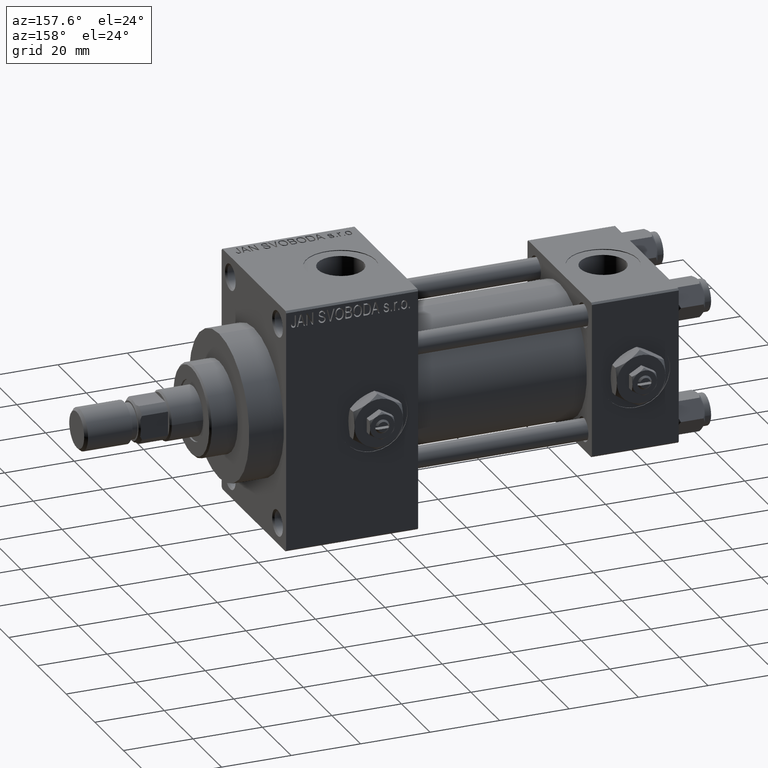
[diagram: clean part render]
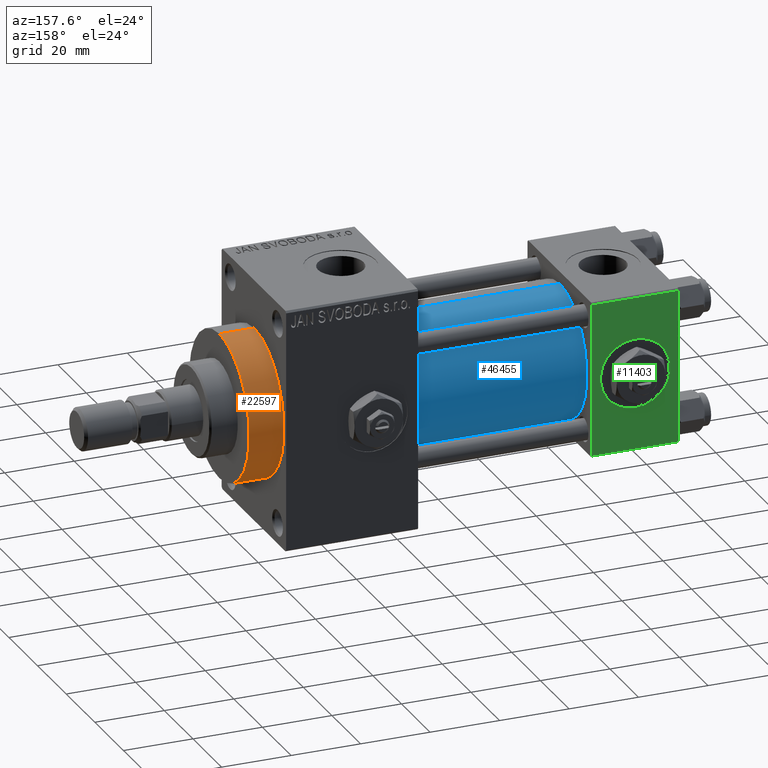
[diagram: same view with three faces highlighted in distinct colors, each labeled with its STEP entity id]
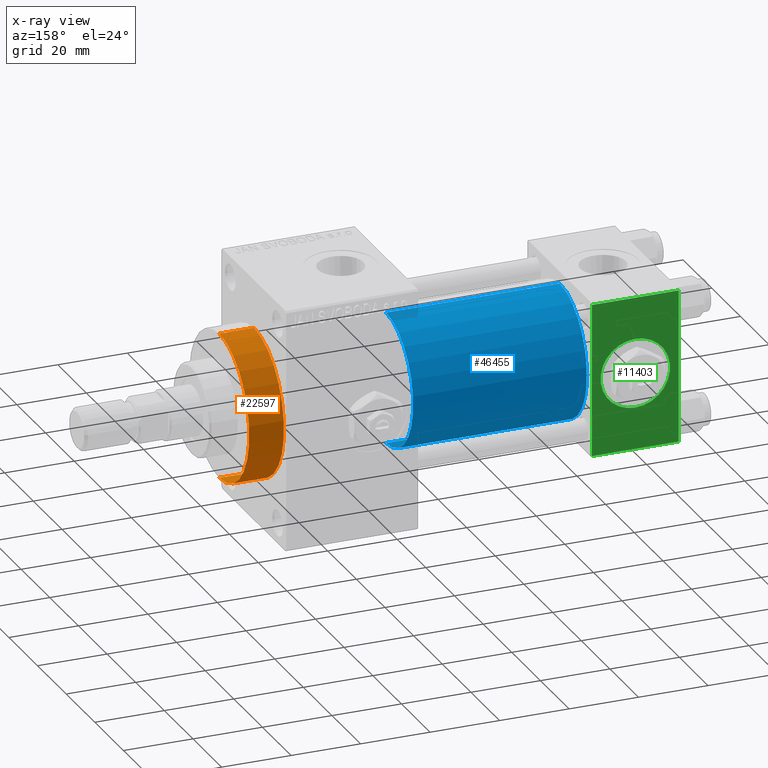
[diagram: x-ray of the same camera — body ghosted, the three highlighted faces saturated]
A machine part, auxiliary view with three faces highlighted in distinct colors.
The next image is the same camera in x-ray (body ghosted, the three faces saturated) — at least one of them is partly hidden behind the body in this view.
Their STEP definitions:

[orange] entity #22597 — the highlighted cylindrical surface (partial cylindrical patch) has radius 21 mm, axis along (-1, -0, -0).
#2892 = DIRECTION ( 'NONE',  ( 0.000000000000000000, 0.000000000000000000, -1.000000000000000000 ) ) ;
#4232 = CARTESIAN_POINT ( 'NONE',  ( 113.0000000000000142, 0.000000000000000000, 21.00000000000000000 ) ) ;
#5423 = AXIS2_PLACEMENT_3D ( 'NONE', #15633, #27124, #28609 ) ;
#5555 = EDGE_CURVE ( 'NONE', #37567, #17385, #31849, .T. ) ;
#5666 = CARTESIAN_POINT ( 'NONE',  ( 113.0000000000000142, 0.000000000000000000, 0.000000000000000000 ) ) ;
#8126 = DIRECTION ( 'NONE',  ( 0.000000000000000000, 0.000000000000000000, 1.000000000000000000 ) ) ;
#9403 = CARTESIAN_POINT ( 'NONE',  ( 113.0000000000000142, 2.571758278209441661E-15, -21.00000000000000000 ) ) ;
#10092 = LINE ( 'NONE', #18857, #35168 ) ;
#13868 = DIRECTION ( 'NONE',  ( -1.000000000000000000, -0.000000000000000000, -0.000000000000000000 ) ) ;
#14356 = CARTESIAN_POINT ( 'NONE',  ( 123.0000000000000142, 0.000000000000000000, 21.00000000000000000 ) ) ;
#15633 = CARTESIAN_POINT ( 'NONE',  ( 123.0000000000000142, 0.000000000000000000, 0.000000000000000000 ) ) ;
#15890 = ORIENTED_EDGE ( 'NONE', *, *, #5555, .F. ) ;
#16132 = CARTESIAN_POINT ( 'NONE',  ( 123.0000000000000142, 2.571758278209441661E-15, -21.00000000000000000 ) ) ;
#17385 = VERTEX_POINT ( 'NONE', #4232 ) ;
#18857 = CARTESIAN_POINT ( 'NONE',  ( 123.0000000000000142, 2.571758278209441661E-15, -21.00000000000000000 ) ) ;
#19082 = VECTOR ( 'NONE', #19856, 1000.000000000000000 ) ;
#19374 = CARTESIAN_POINT ( 'NONE',  ( 123.0000000000000142, 0.000000000000000000, 21.00000000000000000 ) ) ;
#19856 = DIRECTION ( 'NONE',  ( -1.000000000000000000, -0.000000000000000000, -0.000000000000000000 ) ) ;
#20390 = DIRECTION ( 'NONE',  ( -1.000000000000000000, -0.000000000000000000, -0.000000000000000000 ) ) ;
#22597 = ADVANCED_FACE ( 'NONE', ( #42456 ), #39414, .T. ) ;
#23479 = ORIENTED_EDGE ( 'NONE', *, *, #37577, .T. ) ;
#25171 = AXIS2_PLACEMENT_3D ( 'NONE', #35166, #20390, #8126 ) ;
#26530 = AXIS2_PLACEMENT_3D ( 'NONE', #5666, #37226, #2892 ) ;
#27124 = DIRECTION ( 'NONE',  ( 1.000000000000000000, 0.000000000000000000, 0.000000000000000000 ) ) ;
#27337 = CIRCLE ( 'NONE', #26530, 21.00000000000000000 ) ;
#28609 = DIRECTION ( 'NONE',  ( 0.000000000000000000, 0.000000000000000000, -1.000000000000000000 ) ) ;
#29227 = EDGE_CURVE ( 'NONE', #38204, #37567, #31034, .T. ) ;
#31034 = CIRCLE ( 'NONE', #5423, 21.00000000000000000 ) ;
#31069 = ORIENTED_EDGE ( 'NONE', *, *, #42735, .T. ) ;
#31849 = LINE ( 'NONE', #19374, #19082 ) ;
#35166 = CARTESIAN_POINT ( 'NONE',  ( 123.0000000000000142, 0.000000000000000000, 0.000000000000000000 ) ) ;
#35168 = VECTOR ( 'NONE', #13868, 1000.000000000000000 ) ;
#35626 = EDGE_LOOP ( 'NONE', ( #35862, #23479, #31069, #15890 ) ) ;
#35862 = ORIENTED_EDGE ( 'NONE', *, *, #29227, .F. ) ;
#37226 = DIRECTION ( 'NONE',  ( 1.000000000000000000, 0.000000000000000000, 0.000000000000000000 ) ) ;
#37567 = VERTEX_POINT ( 'NONE', #14356 ) ;
#37577 = EDGE_CURVE ( 'NONE', #38204, #45240, #10092, .T. ) ;
#38204 = VERTEX_POINT ( 'NONE', #16132 ) ;
#39414 = CYLINDRICAL_SURFACE ( 'NONE', #25171, 21.00000000000000000 ) ;
#42456 = FACE_OUTER_BOUND ( 'NONE', #35626, .T. ) ;
#42735 = EDGE_CURVE ( 'NONE', #45240, #17385, #27337, .T. ) ;
#45240 = VERTEX_POINT ( 'NONE', #9403 ) ;

[blue] entity #46455 — the highlighted cylindrical surface (partial cylindrical patch) has radius 19 mm, axis along (-1, -0, -0).
#2342 = EDGE_CURVE ( 'NONE', #5999, #12745, #44209, .T. ) ;
#2559 = CARTESIAN_POINT ( 'NONE',  ( 25.00000000000000000, -2.752562955852396712E-16, -19.00000000000000000 ) ) ;
#5412 = EDGE_LOOP ( 'NONE', ( #39027, #13041, #42555, #28788 ) ) ;
#5999 = VERTEX_POINT ( 'NONE', #8806 ) ;
#7538 = VECTOR ( 'NONE', #28149, 1000.000000000000000 ) ;
#8617 = LINE ( 'NONE', #12143, #7538 ) ;
#8806 = CARTESIAN_POINT ( 'NONE',  ( 75.00000000000001421, -2.752562955852396712E-16, -19.00000000000000000 ) ) ;
#8965 = VERTEX_POINT ( 'NONE', #29678 ) ;
#12143 = CARTESIAN_POINT ( 'NONE',  ( 75.00000000000001421, -2.602085213965210642E-15, 19.00000000000000000 ) ) ;
#12745 = VERTEX_POINT ( 'NONE', #2559 ) ;
#13041 = ORIENTED_EDGE ( 'NONE', *, *, #2342, .T. ) ;
#14185 = CYLINDRICAL_SURFACE ( 'NONE', #44303, 19.00000000000000000 ) ;
#16003 = VERTEX_POINT ( 'NONE', #16255 ) ;
#16255 = CARTESIAN_POINT ( 'NONE',  ( 25.00000000000000000, -2.602085213965210642E-15, 19.00000000000000000 ) ) ;
#17206 = DIRECTION ( 'NONE',  ( 1.000000000000000000, -0.000000000000000000, 0.000000000000000000 ) ) ;
#17420 = DIRECTION ( 'NONE',  ( -1.000000000000000000, -0.000000000000000000, -0.000000000000000000 ) ) ;
#17947 = DIRECTION ( 'NONE',  ( 0.000000000000000000, 0.000000000000000000, 1.000000000000000000 ) ) ;
#22676 = DIRECTION ( 'NONE',  ( 0.000000000000000000, 0.000000000000000000, 1.000000000000000000 ) ) ;
#24334 = CIRCLE ( 'NONE', #45918, 19.00000000000000000 ) ;
#25601 = AXIS2_PLACEMENT_3D ( 'NONE', #34863, #45906, #34366 ) ;
#28149 = DIRECTION ( 'NONE',  ( -1.000000000000000000, -0.000000000000000000, -0.000000000000000000 ) ) ;
#28788 = ORIENTED_EDGE ( 'NONE', *, *, #47549, .F. ) ;
#28959 = CARTESIAN_POINT ( 'NONE',  ( 25.00000000000000000, -2.602085213965210642E-15, 0.000000000000000000 ) ) ;
#29678 = CARTESIAN_POINT ( 'NONE',  ( 75.00000000000001421, -2.602085213965210642E-15, 19.00000000000000000 ) ) ;
#34366 = DIRECTION ( 'NONE',  ( 0.000000000000000000, 0.000000000000000000, -1.000000000000000000 ) ) ;
#34863 = CARTESIAN_POINT ( 'NONE',  ( 75.00000000000001421, -2.602085213965210642E-15, 0.000000000000000000 ) ) ;
#38431 = EDGE_CURVE ( 'NONE', #5999, #8965, #43176, .T. ) ;
#39027 = ORIENTED_EDGE ( 'NONE', *, *, #38431, .F. ) ;
#41713 = DIRECTION ( 'NONE',  ( -1.000000000000000000, -0.000000000000000000, -0.000000000000000000 ) ) ;
#42555 = ORIENTED_EDGE ( 'NONE', *, *, #47254, .T. ) ;
#43176 = CIRCLE ( 'NONE', #25601, 19.00000000000000000 ) ;
#43950 = CARTESIAN_POINT ( 'NONE',  ( 75.00000000000001421, -2.752562955852396712E-16, -19.00000000000000000 ) ) ;
#44209 = LINE ( 'NONE', #43950, #44574 ) ;
#44303 = AXIS2_PLACEMENT_3D ( 'NONE', #44733, #41713, #22676 ) ;
#44574 = VECTOR ( 'NONE', #17420, 1000.000000000000000 ) ;
#44733 = CARTESIAN_POINT ( 'NONE',  ( 75.00000000000001421, -2.602085213965210642E-15, 0.000000000000000000 ) ) ;
#45906 = DIRECTION ( 'NONE',  ( 1.000000000000000000, 0.000000000000000000, 0.000000000000000000 ) ) ;
#45918 = AXIS2_PLACEMENT_3D ( 'NONE', #28959, #17206, #17947 ) ;
#46455 = ADVANCED_FACE ( 'NONE', ( #48503 ), #14185, .T. ) ;
#47254 = EDGE_CURVE ( 'NONE', #12745, #16003, #24334, .T. ) ;
#47549 = EDGE_CURVE ( 'NONE', #8965, #16003, #8617, .T. ) ;
#48503 = FACE_OUTER_BOUND ( 'NONE', #5412, .T. ) ;

[green] entity #11403 — the highlighted planar face has unit normal (0, 1, 0).
#592 = ORIENTED_EDGE ( 'NONE', *, *, #6991, .T. ) ;
#1344 = EDGE_LOOP ( 'NONE', ( #23228, #48262 ) ) ;
#1767 = AXIS2_PLACEMENT_3D ( 'NONE', #48749, #14434, #28951 ) ;
#2926 = DIRECTION ( 'NONE',  ( 0.000000000000000000, 0.000000000000000000, -1.000000000000000000 ) ) ;
#4001 = CARTESIAN_POINT ( 'NONE',  ( 12.50000000000000178, 22.50000000000000000, -9.999999999999996447 ) ) ;
#5015 = VECTOR ( 'NONE', #12668, 1000.000000000000000 ) ;
#6123 = CARTESIAN_POINT ( 'NONE',  ( 12.50000000000000000, 22.50000000000000000, 9.999999999999996447 ) ) ;
#6991 = EDGE_CURVE ( 'NONE', #48776, #31774, #20650, .T. ) ;
#7269 = CARTESIAN_POINT ( 'NONE',  ( 12.50000000000000000, 22.50000000000000000, 0.000000000000000000 ) ) ;
#10794 = FACE_BOUND ( 'NONE', #1344, .T. ) ;
#11038 = DIRECTION ( 'NONE',  ( 0.000000000000000000, -0.000000000000000000, 1.000000000000000000 ) ) ;
#11403 = ADVANCED_FACE ( 'NONE', ( #10794, #34314 ), #26065, .T. ) ;
#11504 = VERTEX_POINT ( 'NONE', #4001 ) ;
#11691 = EDGE_CURVE ( 'NONE', #29841, #48776, #25483, .T. ) ;
#12148 = CARTESIAN_POINT ( 'NONE',  ( 0.000000000000000000, 22.50000000000000000, 22.50000000000000355 ) ) ;
#12225 = VERTEX_POINT ( 'NONE', #37563 ) ;
#12668 = DIRECTION ( 'NONE',  ( 1.000000000000000000, 0.000000000000000000, 0.000000000000000000 ) ) ;
#13125 = VECTOR ( 'NONE', #37968, 1000.000000000000000 ) ;
#13581 = ORIENTED_EDGE ( 'NONE', *, *, #24748, .F. ) ;
#14434 = DIRECTION ( 'NONE',  ( 0.000000000000000000, 1.000000000000000000, 0.000000000000000000 ) ) ;
#15993 = AXIS2_PLACEMENT_3D ( 'NONE', #33823, #41098, #11038 ) ;
#17923 = EDGE_CURVE ( 'NONE', #11504, #28979, #39387, .T. ) ;
#18399 = VECTOR ( 'NONE', #2926, 1000.000000000000000 ) ;
#20650 = LINE ( 'NONE', #31423, #47130 ) ;
#22309 = DIRECTION ( 'NONE',  ( 0.000000000000000000, 0.000000000000000000, 1.000000000000000000 ) ) ;
#23228 = ORIENTED_EDGE ( 'NONE', *, *, #38763, .F. ) ;
#23447 = CARTESIAN_POINT ( 'NONE',  ( 25.00000000000000000, 22.50000000000000000, 21.99999999999999645 ) ) ;
#24748 = EDGE_CURVE ( 'NONE', #12225, #31774, #30198, .T. ) ;
#25269 = CARTESIAN_POINT ( 'NONE',  ( 0.000000000000000000, 22.50000000000000000, -21.99999999999996803 ) ) ;
#25483 = LINE ( 'NONE', #40760, #18399 ) ;
#26061 = DIRECTION ( 'NONE',  ( 0.000000000000000000, 1.000000000000000000, 0.000000000000000000 ) ) ;
#26065 = PLANE ( 'NONE',  #15993 ) ;
#27045 = ORIENTED_EDGE ( 'NONE', *, *, #11691, .T. ) ;
#28244 = CARTESIAN_POINT ( 'NONE',  ( 25.00000000000000000, 22.50000000000000000, 21.99999999999999645 ) ) ;
#28951 = DIRECTION ( 'NONE',  ( 0.000000000000000000, 0.000000000000000000, 1.000000000000000000 ) ) ;
#28979 = VERTEX_POINT ( 'NONE', #6123 ) ;
#29841 = VERTEX_POINT ( 'NONE', #28244 ) ;
#30198 = LINE ( 'NONE', #12148, #13125 ) ;
#30429 = CIRCLE ( 'NONE', #43215, 9.999999999999996447 ) ;
#31423 = CARTESIAN_POINT ( 'NONE',  ( 25.00000000000000000, 22.50000000000000000, -21.99999999999998224 ) ) ;
#31774 = VERTEX_POINT ( 'NONE', #25269 ) ;
#33823 = CARTESIAN_POINT ( 'NONE',  ( 25.00000000000000000, 22.50000000000000000, 22.50000000000000355 ) ) ;
#34314 = FACE_OUTER_BOUND ( 'NONE', #41906, .T. ) ;
#35182 = DIRECTION ( 'NONE',  ( -1.000000000000000000, 0.000000000000000000, 0.000000000000000000 ) ) ;
#37563 = CARTESIAN_POINT ( 'NONE',  ( 0.000000000000000000, 22.50000000000000000, 21.99999999999999645 ) ) ;
#37968 = DIRECTION ( 'NONE',  ( 0.000000000000000000, 0.000000000000000000, -1.000000000000000000 ) ) ;
#38763 = EDGE_CURVE ( 'NONE', #28979, #11504, #30429, .T. ) ;
#39387 = CIRCLE ( 'NONE', #1767, 9.999999999999996447 ) ;
#40760 = CARTESIAN_POINT ( 'NONE',  ( 25.00000000000000000, 22.50000000000000000, 22.50000000000000355 ) ) ;
#41098 = DIRECTION ( 'NONE',  ( -0.000000000000000000, 1.000000000000000000, 0.000000000000000000 ) ) ;
#41906 = EDGE_LOOP ( 'NONE', ( #27045, #592, #13581, #44745 ) ) ;
#43215 = AXIS2_PLACEMENT_3D ( 'NONE', #7269, #26061, #22309 ) ;
#44246 = EDGE_CURVE ( 'NONE', #12225, #29841, #46259, .T. ) ;
#44745 = ORIENTED_EDGE ( 'NONE', *, *, #44246, .T. ) ;
#45574 = CARTESIAN_POINT ( 'NONE',  ( 25.00000000000000000, 22.50000000000000000, -21.99999999999996803 ) ) ;
#46259 = LINE ( 'NONE', #23447, #5015 ) ;
#47130 = VECTOR ( 'NONE', #35182, 1000.000000000000000 ) ;
#48262 = ORIENTED_EDGE ( 'NONE', *, *, #17923, .F. ) ;
#48749 = CARTESIAN_POINT ( 'NONE',  ( 12.50000000000000000, 22.50000000000000000, 0.000000000000000000 ) ) ;
#48776 = VERTEX_POINT ( 'NONE', #45574 ) ;